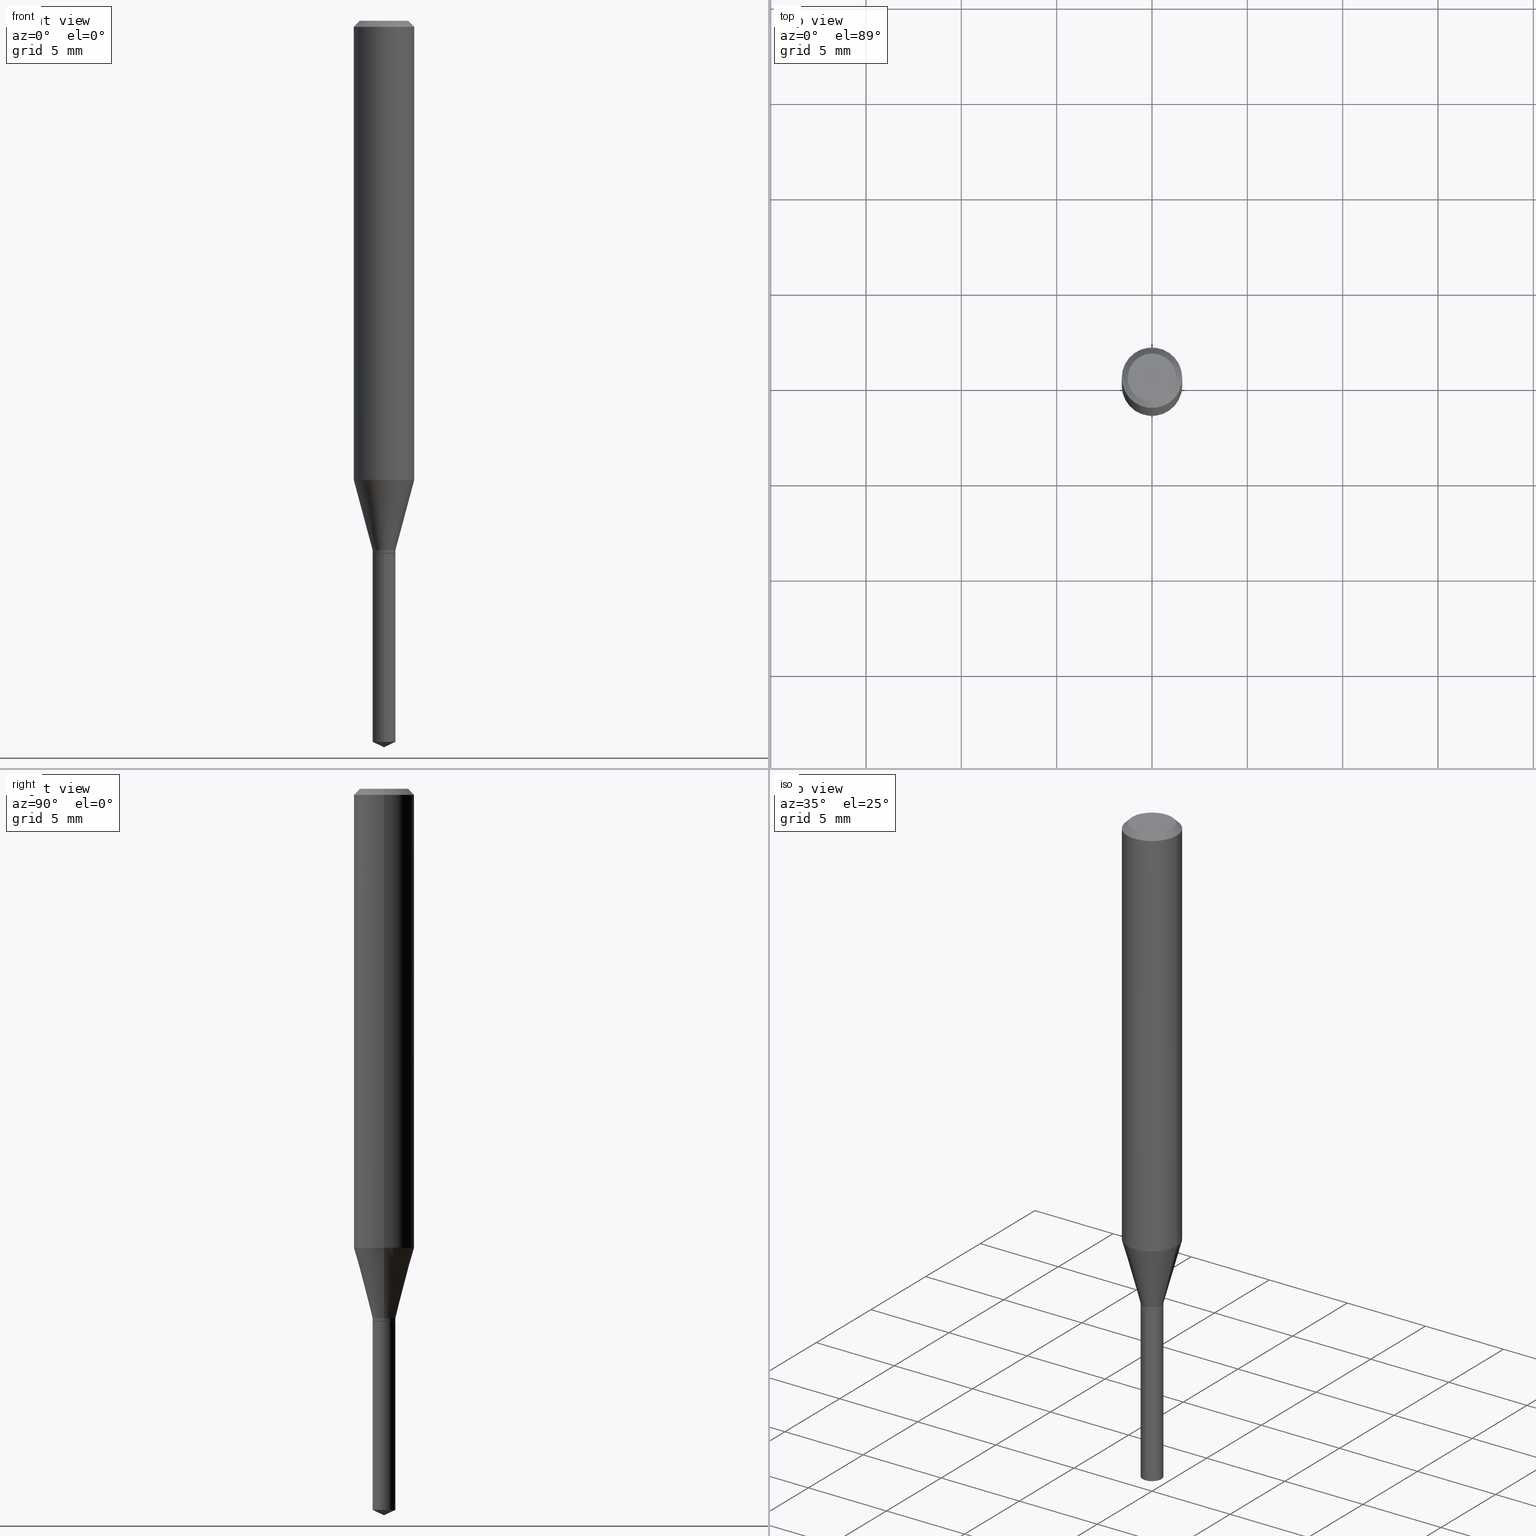
[diagram: canonical four-view strip — front | top / right | iso, engineering-drawing reading convention]
A machine part, canonical four-view strip (front | top / right | iso — engineering-drawing reading convention). The complete STEP part file that produces these views, byte-faithful:
ISO-10303-21;
HEADER;
FILE_DESCRIPTION (( 'STEP AP203' ),
    '1' );
FILE_NAME ('07162.STEP',
    '2024-04-23T19:51:07',
    ( '' ),
    ( '' ),
    'SwSTEP 2.0',
    'SolidWorks 2023',
    '' );
FILE_SCHEMA (( 'CONFIG_CONTROL_DESIGN' ));
ENDSEC;

DATA;
#1 = CARTESIAN_POINT ( 'NONE',  ( 0.06250000000000001388, -4.724246415962604812E-16, -0.01250000000000008916 ) ) ;
#2 = DIRECTION ( 'NONE',  ( 1.000000000000000000, -6.982962677686258033E-15, 0.000000000000000000 ) ) ;
#3 = PERSON_AND_ORGANIZATION_ROLE ( 'creator' ) ;
#4 = DIRECTION ( 'NONE',  ( -2.445399690415121810E-29, 3.491580316559632610E-15, 1.000000000000000000 ) ) ;
#5 = CIRCLE ( 'NONE', #13, 0.02360000000000000292 ) ;
#6 = APPROVAL_PERSON_ORGANIZATION ( #44, #146, #391 ) ;
#7 = APPROVAL_DATE_TIME ( #124, #146 ) ;
#8 = LINE ( 'NONE', #47, #394 ) ;
#9 = DATE_AND_TIME ( #456, #260 ) ;
#10 = CARTESIAN_POINT ( 'NONE',  ( 0.000000000000000000, 0.000000000000000000, 0.000000000000000000 ) ) ;
#11 = CARTESIAN_POINT ( 'NONE',  ( 3.641264279941484398E-29, -5.198837244231382439E-15, -1.488995139267542012 ) ) ;
#12 = ADVANCED_FACE ( 'NONE', ( #43 ), #266, .T. ) ;
#13 = AXIS2_PLACEMENT_3D ( 'NONE', #373, #134, #59 ) ;
#14 = ORGANIZATION ( 'UNSPECIFIED', 'UNSPECIFIED', '' ) ;
#15 = LINE ( 'NONE', #114, #463 ) ;
#16 = ORIENTED_EDGE ( 'NONE', *, *, #227, .T. ) ;
#17 = CARTESIAN_POINT ( 'NONE',  ( 3.641264279941484398E-29, -5.198837244231382439E-15, -1.488995139267542012 ) ) ;
#18 = EDGE_LOOP ( 'NONE', ( #127, #178, #94, #177 ) ) ;
#19 = DIRECTION ( 'NONE',  ( -6.982962677686266711E-15, -1.000000000000000000, 3.520397390770536306E-15 ) ) ;
#20 = AXIS2_PLACEMENT_3D ( 'NONE', #11, #77, #131 ) ;
#21 = CIRCLE ( 'NONE', #50, 0.02360000000000000292 ) ;
#22 = DIRECTION ( 'NONE',  ( -2.445468806185136597E-29, 3.491481338843145583E-15, 1.000000000000000000 ) ) ;
#23 = ORIENTED_EDGE ( 'NONE', *, *, #84, .F. ) ;
#24 = LINE ( 'NONE', #254, #116 ) ;
#25 = CARTESIAN_POINT ( 'NONE',  ( -0.06250000000000012490, -2.864868739687227081E-15, -0.9477232235855707065 ) ) ;
#26 = ADVANCED_FACE ( 'NONE', ( #274 ), #400, .T. ) ;
#27 = ORIENTED_EDGE ( 'NONE', *, *, #356, .F. ) ;
#28 = VECTOR ( 'NONE', #63, 39.37007874015748143 ) ;
#29 = CARTESIAN_POINT ( 'NONE',  ( -1.647979191933689828E-16, -0.02360000000000384360, -1.099999999999999867 ) ) ;
#30 = VECTOR ( 'NONE', #45, 39.37007874015748854 ) ;
#31 = APPLICATION_PROTOCOL_DEFINITION ( 'international standard', 'config_control_design', 1994, #329 ) ;
#32 = ADVANCED_FACE ( 'NONE', ( #320 ), #37, .F. ) ;
#33 = CARTESIAN_POINT ( 'NONE',  ( -0.06250000000000001388, -1.232211523286351422E-15, -0.01250000000000008916 ) ) ;
#34 = AXIS2_PLACEMENT_3D ( 'NONE', #462, #48, #357 ) ;
#35 = EDGE_LOOP ( 'NONE', ( #185, #374, #308, #489 ) ) ;
#36 = APPROVAL_PERSON_ORGANIZATION ( #314, #193, #235 ) ;
#37 = PLANE ( 'NONE',  #284 ) ;
#38 = DATE_TIME_ROLE ( 'classification_date' ) ;
#39 = DIRECTION ( 'NONE',  ( -2.445468806185136597E-29, 3.491481338843145583E-15, 1.000000000000000000 ) ) ;
#40 = CARTESIAN_POINT ( 'NONE',  ( -0.02360000000000000292, -3.648151869582290642E-15, -1.092900000000000205 ) ) ;
#41 = DIRECTION ( 'NONE',  ( -1.000000000000000000, 6.982962677686265922E-15, -4.876176775795935793E-29 ) ) ;
#42 = AXIS2_PLACEMENT_3D ( 'NONE', #181, #96, #140 ) ;
#43 = FACE_OUTER_BOUND ( 'NONE', #377, .T. ) ;
#44 = PERSON_AND_ORGANIZATION ( #335, #14 ) ;
#45 = DIRECTION ( 'NONE',  ( 6.439704144417001954E-15, 0.9063077870366483824, 0.4226182617407028830 ) ) ;
#46 = EDGE_CURVE ( 'NONE', #123, #230, #455, .T. ) ;
#47 = CARTESIAN_POINT ( 'NONE',  ( 1.676880856394105352E-16, 0.02359999999999615877, -1.100000000000000089 ) ) ;
#48 = DIRECTION ( 'NONE',  ( -2.445399690415121530E-29, 3.491580316559632610E-15, 1.000000000000000000 ) ) ;
#49 = ORIENTED_EDGE ( 'NONE', *, *, #298, .T. ) ;
#50 = AXIS2_PLACEMENT_3D ( 'NONE', #398, #207, #167 ) ;
#51 = DIRECTION ( 'NONE',  ( -2.445468806185136597E-29, 3.491481338843145583E-15, 1.000000000000000000 ) ) ;
#52 = ORIENTED_EDGE ( 'NONE', *, *, #393, .T. ) ;
#53 = CC_DESIGN_PERSON_AND_ORGANIZATION_ASSIGNMENT ( #426, #388, ( #164 ) ) ;
#54 = CYLINDRICAL_SURFACE ( 'NONE', #135, 0.06250000000000006939 ) ;
#55 = ORIENTED_EDGE ( 'NONE', *, *, #237, .F. ) ;
#56 = DIRECTION ( 'NONE',  ( 1.000000000000000000, -6.982962677686258033E-15, 0.000000000000000000 ) ) ;
#57 = ORIENTED_EDGE ( 'NONE', *, *, #84, .T. ) ;
#58 = AXIS2_PLACEMENT_3D ( 'NONE', #79, #236, #85 ) ;
#59 = DIRECTION ( 'NONE',  ( 1.000000000000000000, -6.982962677686258033E-15, 0.000000000000000000 ) ) ;
#60 = ORIENTED_EDGE ( 'NONE', *, *, #112, .F. ) ;
#61 = EDGE_CURVE ( 'NONE', #64, #108, #350, .T. ) ;
#62 = CARTESIAN_POINT ( 'NONE',  ( 0.000000000000000000, 0.000000000000000000, 0.000000000000000000 ) ) ;
#63 = DIRECTION ( 'NONE',  ( 0.7071067811865453523, -7.319954787623248157E-15, -0.7071067811865496822 ) ) ;
#64 = VERTEX_POINT ( 'NONE', #147 ) ;
#65 = EDGE_LOOP ( 'NONE', ( #211, #296, #104, #386 ) ) ;
#66 = CARTESIAN_POINT ( 'NONE',  ( 0.000000000000000000, 0.000000000000000000, 0.000000000000000000 ) ) ;
#67 = ADVANCED_FACE ( 'NONE', ( #215 ), #279, .F. ) ;
#68 = ORIENTED_EDGE ( 'NONE', *, *, #61, .F. ) ;
#69 = DIRECTION ( 'NONE',  ( -2.445468806185136597E-29, 3.491481338843145583E-15, 1.000000000000000000 ) ) ;
#70 = DIRECTION ( 'NONE',  ( 1.000000000000000000, -6.982962677686265922E-15, 0.000000000000000000 ) ) ;
#71 = VECTOR ( 'NONE', #118, 39.37007874015748143 ) ;
#72 = APPROVAL_PERSON_ORGANIZATION ( #429, #425, #348 ) ;
#73 = APPLICATION_CONTEXT ( 'configuration controlled 3d designs of mechanical parts and assemblies' ) ;
#74 = CALENDAR_DATE ( 2024, 23, 4 ) ;
#75 = CIRCLE ( 'NONE', #330, 0.04999999999999999584 ) ;
#76 = CYLINDRICAL_SURFACE ( 'NONE', #58, 0.02360000000000000292 ) ;
#77 = DIRECTION ( 'NONE',  ( -2.445399690415121530E-29, 3.491580316559632610E-15, 1.000000000000000000 ) ) ;
#78 = MANIFOLD_SOLID_BREP ( 'Body-Move/Copy2[2]', #487 ) ;
#79 = CARTESIAN_POINT ( 'NONE',  ( 2.690015686803650369E-29, -3.840629472727460101E-15, -1.100000000000000089 ) ) ;
#80 = VECTOR ( 'NONE', #272, 39.37007874015747433 ) ;
#81 = MANIFOLD_SOLID_BREP ( 'Body-Move/Copy2[1]', #428 ) ;
#82 = AXIS2_PLACEMENT_3D ( 'NONE', #179, #324, #184 ) ;
#83 = AXIS2_PLACEMENT_3D ( 'NONE', #375, #412, #419 ) ;
#84 = EDGE_CURVE ( 'NONE', #259, #410, #434, .T. ) ;
#85 = DIRECTION ( 'NONE',  ( -6.982962677686265133E-15, -1.000000000000000000, 5.787813545898861862E-15 ) ) ;
#86 = LINE ( 'NONE', #246, #30 ) ;
#87 = ORIENTED_EDGE ( 'NONE', *, *, #393, .F. ) ;
#88 = CARTESIAN_POINT ( 'NONE',  ( 0.000000000000000000, 0.000000000000000000, 0.000000000000000000 ) ) ;
#89 = ORIENTED_EDGE ( 'NONE', *, *, #420, .F. ) ;
#90 = AXIS2_PLACEMENT_3D ( 'NONE', #66, #105, #261 ) ;
#91 = LOCAL_TIME ( 15, 51, 7.000000000000000000, #173 ) ;
#92 = DIRECTION ( 'NONE',  ( 1.000000000000000000, -6.982962677686258033E-15, 0.000000000000000000 ) ) ;
#93 = DIRECTION ( 'NONE',  ( -2.445399690415121530E-29, 3.491580316559632610E-15, 1.000000000000000000 ) ) ;
#94 = ORIENTED_EDGE ( 'NONE', *, *, #112, .T. ) ;
#95 = CC_DESIGN_PERSON_AND_ORGANIZATION_ASSIGNMENT ( #225, #192, ( #282 ) ) ;
#96 = DIRECTION ( 'NONE',  ( -2.445468806185136597E-29, 3.491481338843145583E-15, 1.000000000000000000 ) ) ;
#97 = VERTEX_POINT ( 'NONE', #457 ) ;
#98 = EDGE_CURVE ( 'NONE', #180, #64, #309, .T. ) ;
#99 = AXIS2_PLACEMENT_3D ( 'NONE', #336, #69, #145 ) ;
#100 = DIRECTION ( 'NONE',  ( -2.445399690415121530E-29, 3.491580316559632610E-15, 1.000000000000000000 ) ) ;
#101 = EDGE_LOOP ( 'NONE', ( #89, #338, #49, #139 ) ) ;
#102 = CARTESIAN_POINT ( 'NONE',  ( 2.672652858279736287E-29, -3.815839955221674751E-15, -1.092900000000000205 ) ) ;
#103 = ADVANCED_FACE ( 'NONE', ( #423 ), #449, .T. ) ;
#104 = ORIENTED_EDGE ( 'NONE', *, *, #262, .F. ) ;
#105 = DIRECTION ( 'NONE',  ( 0.000000000000000000, 0.000000000000000000, 1.000000000000000000 ) ) ;
#106 = AXIS2_PLACEMENT_3D ( 'NONE', #409, #365, #327 ) ;
#107 = CC_DESIGN_APPROVAL ( #193, ( #443 ) ) ;
#108 = VERTEX_POINT ( 'NONE', #244 ) ;
#109 = DIRECTION ( 'NONE',  ( 1.000000000000000000, -6.982962677686265922E-15, 4.876176775795935793E-29 ) ) ;
#110 = ORIENTED_EDGE ( 'NONE', *, *, #98, .T. ) ;
#111 = MECHANICAL_CONTEXT ( 'NONE', #329, 'mechanical' ) ;
#112 = EDGE_CURVE ( 'NONE', #159, #339, #460, .T. ) ;
#113 = CIRCLE ( 'NONE', #310, 0.02360000000000000292 ) ;
#114 = CARTESIAN_POINT ( 'NONE',  ( -0.02360000000000000292, 1.676880856393836646E-16, -1.160868681300157803E-30 ) ) ;
#115 = CIRCLE ( 'NONE', #99, 0.02360000000000000292 ) ;
#116 = VECTOR ( 'NONE', #219, 39.37007874015748854 ) ;
#117 = PERSON_AND_ORGANIZATION_ROLE ( 'design_supplier' ) ;
#118 = DIRECTION ( 'NONE',  ( -2.445468806185136877E-29, 3.491481338843145188E-15, 1.000000000000000000 ) ) ;
#119 = SHAPE_DEFINITION_REPRESENTATION ( #293, #480 ) ;
#120 = CARTESIAN_POINT ( 'NONE',  ( 2.672652858279736287E-29, -3.815839955221674751E-15, -1.092900000000000205 ) ) ;
#121 = EDGE_CURVE ( 'NONE', #413, #339, #126, .T. ) ;
#122 = ORIENTED_EDGE ( 'NONE', *, *, #471, .F. ) ;
#123 = VERTEX_POINT ( 'NONE', #432 ) ;
#124 = DATE_AND_TIME ( #355, #303 ) ;
#125 = CARTESIAN_POINT ( 'NONE',  ( 1.946643104841063088E-47, -2.779290439833033990E-33, -7.960204194457798443E-19 ) ) ;
#126 = CIRCLE ( 'NONE', #385, 0.06250000000000012490 ) ;
#127 = ORIENTED_EDGE ( 'NONE', *, *, #245, .F. ) ;
#128 = AXIS2_PLACEMENT_3D ( 'NONE', #217, #93, #251 ) ;
#129 = ORIENTED_EDGE ( 'NONE', *, *, #369, .T. ) ;
#130 = DATE_TIME_ROLE ( 'creation_date' ) ;
#131 = DIRECTION ( 'NONE',  ( -6.982962677686265133E-15, -1.000000000000000000, 0.000000000000000000 ) ) ;
#132 = DIRECTION ( 'NONE',  ( -2.445399690415121530E-29, 3.491580316559632610E-15, 1.000000000000000000 ) ) ;
#133 = ORIENTED_EDGE ( 'NONE', *, *, #424, .T. ) ;
#134 = DIRECTION ( 'NONE',  ( -2.445468806185136597E-29, 3.491481338843145583E-15, 1.000000000000000000 ) ) ;
#135 = AXIS2_PLACEMENT_3D ( 'NONE', #62, #22, #371 ) ;
#136 = VECTOR ( 'NONE', #448, 39.37007874015748143 ) ;
#137 = CARTESIAN_POINT ( 'NONE',  ( 0.02360000000000000292, -4.003681651251434057E-15, -1.099499999999999922 ) ) ;
#138 = AXIS2_PLACEMENT_3D ( 'NONE', #435, #100, #19 ) ;
#139 = ORIENTED_EDGE ( 'NONE', *, *, #465, .F. ) ;
#140 = DIRECTION ( 'NONE',  ( 1.000000000000000000, -6.982962677686264344E-15, 0.000000000000000000 ) ) ;
#141 = EDGE_CURVE ( 'NONE', #250, #372, #15, .T. ) ;
#142 = ORIENTED_EDGE ( 'NONE', *, *, #465, .T. ) ;
#143 = LINE ( 'NONE', #441, #234 ) ;
#144 = DIRECTION ( 'NONE',  ( -2.438088387897960049E-29, 3.491481338843145188E-15, 1.000000000000000000 ) ) ;
#145 = DIRECTION ( 'NONE',  ( 1.000000000000000000, -6.982962677686258033E-15, 0.000000000000000000 ) ) ;
#146 = APPROVAL ( #162, 'UNSPECIFIED' ) ;
#147 = CARTESIAN_POINT ( 'NONE',  ( 0.04999999999999999584, -4.077247707424184705E-16, -1.592040838888913461E-18 ) ) ;
#148 = CARTESIAN_POINT ( 'NONE',  ( 2.690015686803650369E-29, -3.840629472727460101E-15, -1.100000000000000089 ) ) ;
#149 = CARTESIAN_POINT ( 'NONE',  ( -0.06250000000000001388, 3.927916506198521080E-16, -0.01250000000000008916 ) ) ;
#150 = EDGE_LOOP ( 'NONE', ( #133, #263, #390, #60 ) ) ;
#151 = UNCERTAINTY_MEASURE_WITH_UNIT (LENGTH_MEASURE( 1.000000000000000082E-05 ), #383, 'distance_accuracy_value', 'NONE');
#152 = CARTESIAN_POINT ( 'NONE',  ( 2.690015686803650369E-29, -3.840629472727460101E-15, -1.100000000000000089 ) ) ;
#153 = CONICAL_SURFACE ( 'NONE', #194, 0.02360000000000000292, 0.2617993877991500740 ) ;
#154 = CC_DESIGN_APPROVAL ( #146, ( #164 ) ) ;
#155 = ORIENTED_EDGE ( 'NONE', *, *, #166, .F. ) ;
#156 = DIRECTION ( 'NONE',  ( 1.000000000000000000, -6.982962677686258033E-15, 0.000000000000000000 ) ) ;
#157 = DIRECTION ( 'NONE',  ( -6.328713451373347290E-15, -0.9063077870366454958, 0.4226182617407092112 ) ) ;
#158 = ADVANCED_FACE ( 'NONE', ( #422 ), #76, .T. ) ;
#159 = VERTEX_POINT ( 'NONE', #280 ) ;
#160 = APPROVAL_DATE_TIME ( #490, #425 ) ;
#161 = CARTESIAN_POINT ( 'NONE',  ( 3.056836007731442729E-31, -4.364351673553962300E-17, -0.01250000000000008916 ) ) ;
#162 = APPROVAL_STATUS ( 'not_yet_approved' ) ;
#163 = FACE_OUTER_BOUND ( 'NONE', #35, .T. ) ;
#164 = PRODUCT_DEFINITION_FORMATION_WITH_SPECIFIED_SOURCE ( 'ANY', '', #282, .NOT_KNOWN. ) ;
#165 = PERSON_AND_ORGANIZATION ( #335, #14 ) ;
#166 = EDGE_CURVE ( 'NONE', #488, #97, #209, .T. ) ;
#167 = DIRECTION ( 'NONE',  ( 1.000000000000000000, -6.982962677686258033E-15, 0.000000000000000000 ) ) ;
#168 = EDGE_CURVE ( 'NONE', #339, #108, #315, .T. ) ;
#169 = CARTESIAN_POINT ( 'NONE',  ( 2.690015686803650369E-29, -3.840629472727460101E-15, -1.100000000000000089 ) ) ;
#170 = PERSON_AND_ORGANIZATION ( #335, #14 ) ;
#171 = CARTESIAN_POINT ( 'NONE',  ( 1.676880856394200508E-16, 0.02359999999999479875, -1.488995139267542012 ) ) ;
#172 = DIRECTION ( 'NONE',  ( 2.445468806185136597E-29, -3.491481338843145583E-15, -1.000000000000000000 ) ) ;
#173 = COORDINATED_UNIVERSAL_TIME_OFFSET ( 5, 0, .BEHIND. ) ;
#174 = DIRECTION ( 'NONE',  ( 1.000000000000000000, -6.982962677686264344E-15, 0.000000000000000000 ) ) ;
#175 = CC_DESIGN_APPROVAL ( #425, ( #476 ) ) ;
#176 = CYLINDRICAL_SURFACE ( 'NONE', #286, 0.02360000000000000292 ) ;
#177 = ORIENTED_EDGE ( 'NONE', *, *, #121, .F. ) ;
#178 = ORIENTED_EDGE ( 'NONE', *, *, #213, .T. ) ;
#179 = CARTESIAN_POINT ( 'NONE',  ( -9.260740279983036507E-28, 1.322265303911854087E-13, 37.87007874015748143 ) ) ;
#180 = VERTEX_POINT ( 'NONE', #354 ) ;
#181 = CARTESIAN_POINT ( 'NONE',  ( 2.317627580175734983E-29, -3.308957949537290487E-15, -0.9477232235855707065 ) ) ;
#182 = EDGE_CURVE ( 'NONE', #259, #97, #8, .T. ) ;
#183 = CONICAL_SURFACE ( 'NONE', #82, 84.42940631927235984, 1.134464013796306903 ) ;
#184 = DIRECTION ( 'NONE',  ( -6.982962677686266711E-15, -1.000000000000000000, 3.520397390770536306E-15 ) ) ;
#185 = ORIENTED_EDGE ( 'NONE', *, *, #275, .T. ) ;
#186 = DIRECTION ( 'NONE',  ( 1.000000000000000000, -6.982962677686258033E-15, 0.000000000000000000 ) ) ;
#187 = CARTESIAN_POINT ( 'NONE',  ( -1.647979191933594425E-16, -0.02360000000000519668, -1.488995139267542012 ) ) ;
#188 = VECTOR ( 'NONE', #397, 39.37007874015748143 ) ;
#189 = ORIENTED_EDGE ( 'NONE', *, *, #285, .F. ) ;
#190 = DIRECTION ( 'NONE',  ( 1.000000000000000000, -6.982962677686258033E-15, 0.000000000000000000 ) ) ;
#191 = ORIENTED_EDGE ( 'NONE', *, *, #141, .T. ) ;
#192 = PERSON_AND_ORGANIZATION_ROLE ( 'design_owner' ) ;
#193 = APPROVAL ( #459, 'UNSPECIFIED' ) ;
#194 = AXIS2_PLACEMENT_3D ( 'NONE', #102, #220, #190 ) ;
#195 = EDGE_CURVE ( 'NONE', #413, #417, #323, .T. ) ;
#196 = ORIENTED_EDGE ( 'NONE', *, *, #445, .F. ) ;
#197 = APPROVAL_STATUS ( 'not_yet_approved' ) ;
#198 = DIRECTION ( 'NONE',  ( -0.2588190451025213501, 5.211531920934551042E-15, 0.9659258262890682012 ) ) ;
#199 = CALENDAR_DATE ( 2024, 23, 4 ) ;
#200 = DIRECTION ( 'NONE',  ( 2.438088387897960049E-29, -3.491481338843145188E-15, -1.000000000000000000 ) ) ;
#201 = LOCAL_TIME ( 15, 51, 7.000000000000000000, #242 ) ;
#202 = SECURITY_CLASSIFICATION_LEVEL ( 'unclassified' ) ;
#203 = AXIS2_PLACEMENT_3D ( 'NONE', #289, #439, #186 ) ;
#204 = CARTESIAN_POINT ( 'NONE',  ( 0.02309999999999999901, -4.001935910582012553E-15, -1.100000000000000089 ) ) ;
#205 = PERSON_AND_ORGANIZATION ( #335, #14 ) ;
#206 = DIRECTION ( 'NONE',  ( -2.445468806185136877E-29, 3.491481338843145188E-15, 1.000000000000000000 ) ) ;
#207 = DIRECTION ( 'NONE',  ( -2.445468806185136597E-29, 3.491481338843145583E-15, 1.000000000000000000 ) ) ;
#208 = AXIS2_PLACEMENT_3D ( 'NONE', #468, #39, #156 ) ;
#209 = CIRCLE ( 'NONE', #249, 0.02360000000000000292 ) ;
#210 = FACE_OUTER_BOUND ( 'NONE', #247, .T. ) ;
#211 = ORIENTED_EDGE ( 'NONE', *, *, #356, .T. ) ;
#212 = CARTESIAN_POINT ( 'NONE',  ( 0.06250000000000012490, -3.745393116892682550E-15, -0.9477232235855707065 ) ) ;
#213 = EDGE_CURVE ( 'NONE', #372, #159, #21, .T. ) ;
#214 = CARTESIAN_POINT ( 'NONE',  ( 3.668099535622682715E-29, -5.237370474839449507E-15, -1.500000000000000222 ) ) ;
#215 = FACE_OUTER_BOUND ( 'NONE', #256, .T. ) ;
#216 = ORIENTED_EDGE ( 'NONE', *, *, #424, .F. ) ;
#217 = CARTESIAN_POINT ( 'NONE',  ( 2.690015686803650369E-29, -3.840629472727460101E-15, -1.100000000000000089 ) ) ;
#218 = ORIENTED_EDGE ( 'NONE', *, *, #182, .F. ) ;
#219 = DIRECTION ( 'NONE',  ( 0.7071067811865232589, -2.468850131082003836E-15, 0.7071067811865715536 ) ) ;
#220 = DIRECTION ( 'NONE',  ( -2.445468806185136597E-29, 3.491481338843145583E-15, 1.000000000000000000 ) ) ;
#221 = AXIS2_PLACEMENT_3D ( 'NONE', #317, #454, #360 ) ;
#222 = ORIENTED_EDGE ( 'NONE', *, *, #46, .T. ) ;
#223 = AXIS2_PLACEMENT_3D ( 'NONE', #120, #267, #307 ) ;
#224 = DIRECTION ( 'NONE',  ( 2.445399690415121250E-29, -3.491580316559632610E-15, -1.000000000000000000 ) ) ;
#225 = PERSON_AND_ORGANIZATION ( #335, #14 ) ;
#226 = ORIENTED_EDGE ( 'NONE', *, *, #182, .T. ) ;
#227 = EDGE_CURVE ( 'NONE', #382, #259, #86, .T. ) ;
#228 = ORIENTED_EDGE ( 'NONE', *, *, #121, .T. ) ;
#229 =( LENGTH_UNIT ( ) NAMED_UNIT ( * ) SI_UNIT ( $, .METRE. ) );
#230 = VERTEX_POINT ( 'NONE', #204 ) ;
#231 = CIRCLE ( 'NONE', #34, 0.02360000000000000292 ) ;
#232 = DIRECTION ( 'NONE',  ( 1.000000000000000000, -6.982962677686265922E-15, 4.875957971899673662E-29 ) ) ;
#233 = AXIS2_PLACEMENT_3D ( 'NONE', #281, #367, #92 ) ;
#234 = VECTOR ( 'NONE', #477, 39.37007874015748143 ) ;
#235 = APPROVAL_ROLE ( '' ) ;
#236 = DIRECTION ( 'NONE',  ( -2.445399690415121530E-29, 3.491580316559632610E-15, 1.000000000000000000 ) ) ;
#237 = EDGE_CURVE ( 'NONE', #97, #488, #231, .T. ) ;
#238 = CYLINDRICAL_SURFACE ( 'NONE', #470, 0.06250000000000006939 ) ;
#239 = AXIS2_PLACEMENT_3D ( 'NONE', #125, #200, #41 ) ;
#240 = DIRECTION ( 'NONE',  ( -2.445399690415121530E-29, 3.491580316559632610E-15, 1.000000000000000000 ) ) ;
#241 = DIRECTION ( 'NONE',  ( -1.000000000000000000, 6.982962677686265922E-15, 0.000000000000000000 ) ) ;
#242 = COORDINATED_UNIVERSAL_TIME_OFFSET ( 5, 0, .BEHIND. ) ;
#243 = CC_DESIGN_PERSON_AND_ORGANIZATION_ASSIGNMENT ( #170, #117, ( #164 ) ) ;
#244 = CARTESIAN_POINT ( 'NONE',  ( 0.06250000000000001388, -4.800786840909313294E-16, -0.01250000000000008916 ) ) ;
#245 = EDGE_CURVE ( 'NONE', #372, #413, #389, .T. ) ;
#246 = CARTESIAN_POINT ( 'NONE',  ( 3.668252923656895710E-29, -5.237152723863177100E-15, -1.500000000000000222 ) ) ;
#247 = EDGE_LOOP ( 'NONE', ( #253, #228, #438, #196 ) ) ;
#248 = FACE_OUTER_BOUND ( 'NONE', #404, .T. ) ;
#249 = AXIS2_PLACEMENT_3D ( 'NONE', #395, #240, #358 ) ;
#250 = VERTEX_POINT ( 'NONE', #313 ) ;
#251 = DIRECTION ( 'NONE',  ( -6.982962677686265133E-15, -1.000000000000000000, 5.787813545898861862E-15 ) ) ;
#252 = ADVANCED_FACE ( 'NONE', ( #163 ), #238, .T. ) ;
#253 = ORIENTED_EDGE ( 'NONE', *, *, #195, .F. ) ;
#254 = CARTESIAN_POINT ( 'NONE',  ( 0.02309999999999999901, -4.001935910582012553E-15, -1.100000000000000089 ) ) ;
#255 = CARTESIAN_POINT ( 'NONE',  ( -0.02309999999999999901, -3.676494100766876892E-15, -1.100000000000000089 ) ) ;
#256 = EDGE_LOOP ( 'NONE', ( #110, #349 ) ) ;
#257 = CARTESIAN_POINT ( 'NONE',  ( 2.688792952400557567E-29, -3.838883732058038598E-15, -1.099499999999999922 ) ) ;
#258 = CYLINDRICAL_SURFACE ( 'NONE', #83, 0.02360000000000000292 ) ;
#259 = VERTEX_POINT ( 'NONE', #171 ) ;
#260 = LOCAL_TIME ( 15, 51, 7.000000000000000000, #306 ) ;
#261 = DIRECTION ( 'NONE',  ( 1.000000000000000000, 0.000000000000000000, 0.000000000000000000 ) ) ;
#262 = EDGE_CURVE ( 'NONE', #319, #250, #5, .T. ) ;
#263 = ORIENTED_EDGE ( 'NONE', *, *, #245, .T. ) ;
#264 = FACE_OUTER_BOUND ( 'NONE', #150, .T. ) ;
#265 = LINE ( 'NONE', #381, #430 ) ;
#266 = CONICAL_SURFACE ( 'NONE', #337, 0.02309999999999999901, 0.7853981633974141952 ) ;
#267 = DIRECTION ( 'NONE',  ( -2.445468806185136597E-29, 3.491481338843145583E-15, 1.000000000000000000 ) ) ;
#268 = CC_DESIGN_DATE_AND_TIME_ASSIGNMENT ( #270, #130, ( #476 ) ) ;
#269 = CONICAL_SURFACE ( 'NONE', #138, 84.42940631927235984, 1.134464013796306903 ) ;
#270 = DATE_AND_TIME ( #316, #91 ) ;
#271 = DIRECTION ( 'NONE',  ( -2.445468806185136597E-29, 3.491481338843145583E-15, 1.000000000000000000 ) ) ;
#272 = DIRECTION ( 'NONE',  ( 0.2588190451025213501, 1.565188264969621968E-15, 0.9659258262890682012 ) ) ;
#273 = EDGE_LOOP ( 'NONE', ( #287, #305 ) ) ;
#274 = FACE_OUTER_BOUND ( 'NONE', #101, .T. ) ;
#275 = EDGE_CURVE ( 'NONE', #339, #413, #359, .T. ) ;
#276 = CONICAL_SURFACE ( 'NONE', #344, 0.06250000000000001388, 0.7853981633974452814 ) ;
#277 = CARTESIAN_POINT ( 'NONE',  ( 0.02360000000000000292, -3.980637874415070210E-15, -1.092900000000000205 ) ) ;
#278 = EDGE_CURVE ( 'NONE', #123, #250, #473, .T. ) ;
#279 = PLANE ( 'NONE',  #239 ) ;
#280 = CARTESIAN_POINT ( 'NONE',  ( 0.02360000000000000292, -3.980637874415070210E-15, -1.092900000000000205 ) ) ;
#281 = CARTESIAN_POINT ( 'NONE',  ( 2.690015686803650369E-29, -3.840629472727460101E-15, -1.100000000000000089 ) ) ;
#282 = PRODUCT ( '07162', '07162', '', ( #111 ) ) ;
#283 = FACE_OUTER_BOUND ( 'NONE', #483, .T. ) ;
#284 = AXIS2_PLACEMENT_3D ( 'NONE', #148, #224, #418 ) ;
#285 = EDGE_CURVE ( 'NONE', #410, #259, #113, .T. ) ;
#286 = AXIS2_PLACEMENT_3D ( 'NONE', #88, #466, #469 ) ;
#287 = ORIENTED_EDGE ( 'NONE', *, *, #166, .T. ) ;
#288 = CARTESIAN_POINT ( 'NONE',  ( 3.056836007731442729E-31, -4.364351673553962300E-17, -0.01250000000000008916 ) ) ;
#289 = CARTESIAN_POINT ( 'NONE',  ( 2.690015686803650369E-29, -3.840629472727460101E-15, -1.100000000000000089 ) ) ;
#290 = EDGE_LOOP ( 'NONE', ( #218, #57, #52, #55 ) ) ;
#291 = EDGE_CURVE ( 'NONE', #250, #319, #376, .T. ) ;
#292 = DIRECTION ( 'NONE',  ( -2.445399690415121810E-29, 3.491580316559632610E-15, 1.000000000000000000 ) ) ;
#293 = PRODUCT_DEFINITION_SHAPE ( 'NONE', 'NONE',  #476 ) ;
#294 = ADVANCED_FACE ( 'NONE', ( #210 ), #54, .T. ) ;
#295 = PLANE ( 'NONE',  #478 ) ;
#296 = ORIENTED_EDGE ( 'NONE', *, *, #278, .T. ) ;
#297 = ORIENTED_EDGE ( 'NONE', *, *, #471, .T. ) ;
#298 = EDGE_CURVE ( 'NONE', #108, #417, #414, .T. ) ;
#299 = CC_DESIGN_DATE_AND_TIME_ASSIGNMENT ( #353, #38, ( #443 ) ) ;
#300 = VECTOR ( 'NONE', #403, 39.37007874015748854 ) ;
#301 = CIRCLE ( 'NONE', #415, 0.06250000000000001388 ) ;
#302 = CIRCLE ( 'NONE', #233, 0.02309999999999999901 ) ;
#303 = LOCAL_TIME ( 15, 51, 7.000000000000000000, #461 ) ;
#304 = FACE_OUTER_BOUND ( 'NONE', #467, .T. ) ;
#305 = ORIENTED_EDGE ( 'NONE', *, *, #237, .T. ) ;
#306 = COORDINATED_UNIVERSAL_TIME_OFFSET ( 5, 0, .BEHIND. ) ;
#307 = DIRECTION ( 'NONE',  ( 1.000000000000000000, -6.982962677686258033E-15, 0.000000000000000000 ) ) ;
#308 = ORIENTED_EDGE ( 'NONE', *, *, #298, .F. ) ;
#309 = CIRCLE ( 'NONE', #221, 0.04999999999999999584 ) ;
#310 = AXIS2_PLACEMENT_3D ( 'NONE', #17, #132, #401 ) ;
#311 = PERSON_AND_ORGANIZATION_ROLE ( 'classification_officer' ) ;
#312 =( GEOMETRIC_REPRESENTATION_CONTEXT ( 3 ) GLOBAL_UNCERTAINTY_ASSIGNED_CONTEXT ( ( #151 ) ) GLOBAL_UNIT_ASSIGNED_CONTEXT ( ( #383, #346, #379 ) ) REPRESENTATION_CONTEXT ( 'NONE', 'WORKASPACE' ) );
#313 = CARTESIAN_POINT ( 'NONE',  ( -0.02360000000000000292, -3.659673758000472566E-15, -1.099499999999999922 ) ) ;
#314 = PERSON_AND_ORGANIZATION ( #335, #14 ) ;
#315 = LINE ( 'NONE', #352, #188 ) ;
#316 = CALENDAR_DATE ( 2024, 23, 4 ) ;
#317 = CARTESIAN_POINT ( 'NONE',  ( 3.893286209682126177E-47, -5.558580879666067980E-33, -1.592040838891559689E-18 ) ) ;
#318 = ADVANCED_FACE ( 'NONE', ( #248 ), #183, .T. ) ;
#319 = VERTEX_POINT ( 'NONE', #137 ) ;
#320 = FACE_OUTER_BOUND ( 'NONE', #273, .T. ) ;
#321 = APPROVAL_DATE_TIME ( #9, #193 ) ;
#322 = AXIS2_PLACEMENT_3D ( 'NONE', #257, #51, #56 ) ;
#323 = LINE ( 'NONE', #464, #71 ) ;
#324 = DIRECTION ( 'NONE',  ( -2.445399690415121530E-29, 3.491580316559632610E-15, 1.000000000000000000 ) ) ;
#325 = ADVANCED_FACE ( 'NONE', ( #433 ), #276, .T. ) ;
#326 = DIRECTION ( 'NONE',  ( 2.445468806185136597E-29, -3.491481338843145583E-15, -1.000000000000000000 ) ) ;
#327 = DIRECTION ( 'NONE',  ( 1.000000000000000000, -6.982962677686265922E-15, 0.000000000000000000 ) ) ;
#328 = AXIS2_PLACEMENT_3D ( 'NONE', #161, #172, #241 ) ;
#329 = APPLICATION_CONTEXT ( 'configuration controlled 3d designs of mechanical parts and assemblies' ) ;
#330 = AXIS2_PLACEMENT_3D ( 'NONE', #484, #421, #232 ) ;
#331 = CARTESIAN_POINT ( 'NONE',  ( -0.02360000000000000292, -3.659673758000472566E-15, -1.092900000000000205 ) ) ;
#332 = CC_DESIGN_PERSON_AND_ORGANIZATION_ASSIGNMENT ( #205, #3, ( #476 ) ) ;
#333 = LINE ( 'NONE', #474, #363 ) ;
#334 = ADVANCED_FACE ( 'NONE', ( #436 ), #176, .T. ) ;
#335 = PERSON ( 'UNSPECIFIED', 'UNSPECIFIED', 'UNSPECIFIED', ('UNSPECIFIED'), ('UNSPECIFIED'), ('UNSPECIFIED') ) ;
#336 = CARTESIAN_POINT ( 'NONE',  ( 2.672652858279736287E-29, -3.815839955221674751E-15, -1.092900000000000205 ) ) ;
#337 = AXIS2_PLACEMENT_3D ( 'NONE', #169, #351, #2 ) ;
#338 = ORIENTED_EDGE ( 'NONE', *, *, #61, .T. ) ;
#339 = VERTEX_POINT ( 'NONE', #212 ) ;
#340 = ADVANCED_FACE ( 'NONE', ( #411 ), #472, .T. ) ;
#341 = FACE_OUTER_BOUND ( 'NONE', #362, .T. ) ;
#342 = ORIENTED_EDGE ( 'NONE', *, *, #408, .F. ) ;
#343 = APPLICATION_PROTOCOL_DEFINITION ( 'international standard', 'config_control_design', 1994, #73 ) ;
#344 = AXIS2_PLACEMENT_3D ( 'NONE', #288, #326, #405 ) ;
#345 = LOCAL_TIME ( 15, 51, 7.000000000000000000, #396 ) ;
#346 =( NAMED_UNIT ( * ) PLANE_ANGLE_UNIT ( ) SI_UNIT ( $, .RADIAN. ) );
#347 = EDGE_LOOP ( 'NONE', ( #452, #191, #216, #342 ) ) ;
#348 = APPROVAL_ROLE ( '' ) ;
#349 = ORIENTED_EDGE ( 'NONE', *, *, #420, .T. ) ;
#350 = LINE ( 'NONE', #1, #28 ) ;
#351 = DIRECTION ( 'NONE',  ( -2.445468806185136597E-29, 3.491481338843145583E-15, 1.000000000000000000 ) ) ;
#352 = CARTESIAN_POINT ( 'NONE',  ( 0.06250000000000006939, -4.364351673553921624E-16, 3.047610484872463374E-30 ) ) ;
#353 = DATE_AND_TIME ( #74, #201 ) ;
#354 = CARTESIAN_POINT ( 'NONE',  ( -0.04999999999999999584, 3.709698922520826725E-16, -1.592040838894077649E-18 ) ) ;
#355 = CALENDAR_DATE ( 2024, 23, 4 ) ;
#356 = EDGE_CURVE ( 'NONE', #230, #123, #302, .T. ) ;
#357 = DIRECTION ( 'NONE',  ( -6.982962677686265133E-15, -1.000000000000000000, 5.787813545898861862E-15 ) ) ;
#358 = DIRECTION ( 'NONE',  ( -6.982962677686265133E-15, -1.000000000000000000, 5.787813545898861862E-15 ) ) ;
#359 = CIRCLE ( 'NONE', #42, 0.06250000000000012490 ) ;
#360 = DIRECTION ( 'NONE',  ( 1.000000000000000000, -6.982962677686265922E-15, 4.875957971899673662E-29 ) ) ;
#361 = ORIENTED_EDGE ( 'NONE', *, *, #291, .F. ) ;
#362 = EDGE_LOOP ( 'NONE', ( #407, #364, #481, #440 ) ) ;
#363 = VECTOR ( 'NONE', #292, 39.37007874015748143 ) ;
#364 = ORIENTED_EDGE ( 'NONE', *, *, #291, .T. ) ;
#365 = DIRECTION ( 'NONE',  ( -2.445468806185136597E-29, 3.491481338843145583E-15, 1.000000000000000000 ) ) ;
#366 = ORIENTED_EDGE ( 'NONE', *, *, #278, .F. ) ;
#367 = DIRECTION ( 'NONE',  ( -2.445468806185136597E-29, 3.491481338843145583E-15, 1.000000000000000000 ) ) ;
#368 = FACE_OUTER_BOUND ( 'NONE', #65, .T. ) ;
#369 = EDGE_CURVE ( 'NONE', #230, #319, #24, .T. ) ;
#370 = ADVANCED_FACE ( 'NONE', ( #283 ), #269, .T. ) ;
#371 = DIRECTION ( 'NONE',  ( 1.000000000000000000, -6.982962677686266711E-15, 4.876176775795935793E-29 ) ) ;
#372 = VERTEX_POINT ( 'NONE', #331 ) ;
#373 = CARTESIAN_POINT ( 'NONE',  ( 2.688792952400557567E-29, -3.838883732058038598E-15, -1.099499999999999922 ) ) ;
#374 = ORIENTED_EDGE ( 'NONE', *, *, #195, .T. ) ;
#375 = CARTESIAN_POINT ( 'NONE',  ( 0.000000000000000000, 0.000000000000000000, 0.000000000000000000 ) ) ;
#376 = CIRCLE ( 'NONE', #322, 0.02360000000000000292 ) ;
#377 = EDGE_LOOP ( 'NONE', ( #366, #222, #129, #361 ) ) ;
#378 = CC_DESIGN_PERSON_AND_ORGANIZATION_ASSIGNMENT ( #165, #311, ( #443 ) ) ;
#379 =( NAMED_UNIT ( * ) SI_UNIT ( $, .STERADIAN. ) SOLID_ANGLE_UNIT ( ) );
#380 = CONICAL_SURFACE ( 'NONE', #203, 0.02309999999999999901, 0.7853981633974141952 ) ;
#381 = CARTESIAN_POINT ( 'NONE',  ( 3.668099535622682155E-29, -5.237370474839448718E-15, -1.500000000000000222 ) ) ;
#382 = VERTEX_POINT ( 'NONE', #214 ) ;
#383 =( CONVERSION_BASED_UNIT ( 'INCH', #482 ) LENGTH_UNIT ( ) NAMED_UNIT ( #485 ) );
#384 = ADVANCED_FACE ( 'NONE', ( #368 ), #380, .T. ) ;
#385 = AXIS2_PLACEMENT_3D ( 'NONE', #427, #431, #174 ) ;
#386 = ORIENTED_EDGE ( 'NONE', *, *, #369, .F. ) ;
#387 = CC_DESIGN_SECURITY_CLASSIFICATION ( #443, ( #164 ) ) ;
#388 = PERSON_AND_ORGANIZATION_ROLE ( 'creator' ) ;
#389 = LINE ( 'NONE', #40, #442 ) ;
#390 = ORIENTED_EDGE ( 'NONE', *, *, #275, .F. ) ;
#391 = APPROVAL_ROLE ( '' ) ;
#392 = DIRECTION ( 'NONE',  ( 1.000000000000000000, -6.982962677686266711E-15, 4.876176775795935793E-29 ) ) ;
#393 = EDGE_CURVE ( 'NONE', #410, #488, #333, .T. ) ;
#394 = VECTOR ( 'NONE', #4, 39.37007874015748143 ) ;
#395 = CARTESIAN_POINT ( 'NONE',  ( 2.690015686803650369E-29, -3.840629472727460101E-15, -1.100000000000000089 ) ) ;
#396 = COORDINATED_UNIVERSAL_TIME_OFFSET ( 5, 0, .BEHIND. ) ;
#397 = DIRECTION ( 'NONE',  ( -2.445468806185136877E-29, 3.491481338843145188E-15, 1.000000000000000000 ) ) ;
#398 = CARTESIAN_POINT ( 'NONE',  ( 2.672652858279736287E-29, -3.815839955221674751E-15, -1.092900000000000205 ) ) ;
#399 = ORIENTED_EDGE ( 'NONE', *, *, #227, .F. ) ;
#400 = CONICAL_SURFACE ( 'NONE', #328, 0.06250000000000001388, 0.7853981633974452814 ) ;
#401 = DIRECTION ( 'NONE',  ( -6.982962677686265133E-15, -1.000000000000000000, 0.000000000000000000 ) ) ;
#402 = ORIENTED_EDGE ( 'NONE', *, *, #285, .T. ) ;
#403 = DIRECTION ( 'NONE',  ( -0.7071067811865232589, 7.493145998870265808E-15, 0.7071067811865715536 ) ) ;
#404 = EDGE_LOOP ( 'NONE', ( #399, #297, #23 ) ) ;
#405 = DIRECTION ( 'NONE',  ( -1.000000000000000000, 6.982962677686265922E-15, 0.000000000000000000 ) ) ;
#406 = EDGE_LOOP ( 'NONE', ( #402, #226, #155, #87 ) ) ;
#407 = ORIENTED_EDGE ( 'NONE', *, *, #141, .F. ) ;
#408 = EDGE_CURVE ( 'NONE', #319, #159, #143, .T. ) ;
#409 = CARTESIAN_POINT ( 'NONE',  ( 3.056836007731442729E-31, -4.364351673553962300E-17, -0.01250000000000008916 ) ) ;
#410 = VERTEX_POINT ( 'NONE', #187 ) ;
#411 = FACE_OUTER_BOUND ( 'NONE', #406, .T. ) ;
#412 = DIRECTION ( 'NONE',  ( -2.445468806185136597E-29, 3.491481338843145583E-15, 1.000000000000000000 ) ) ;
#413 = VERTEX_POINT ( 'NONE', #25 ) ;
#414 = CIRCLE ( 'NONE', #106, 0.06250000000000001388 ) ;
#415 = AXIS2_PLACEMENT_3D ( 'NONE', #450, #444, #70 ) ;
#416 = ORIENTED_EDGE ( 'NONE', *, *, #445, .T. ) ;
#417 = VERTEX_POINT ( 'NONE', #33 ) ;
#418 = DIRECTION ( 'NONE',  ( 6.982962677686265922E-15, 1.000000000000000000, -3.491580316559632610E-15 ) ) ;
#419 = DIRECTION ( 'NONE',  ( 1.000000000000000000, -6.982962677686267499E-15, 4.876176775795935793E-29 ) ) ;
#420 = EDGE_CURVE ( 'NONE', #64, #180, #75, .T. ) ;
#421 = DIRECTION ( 'NONE',  ( -2.445468806185136597E-29, 3.491481338843145583E-15, 1.000000000000000000 ) ) ;
#422 = FACE_OUTER_BOUND ( 'NONE', #290, .T. ) ;
#423 = FACE_OUTER_BOUND ( 'NONE', #18, .T. ) ;
#424 = EDGE_CURVE ( 'NONE', #159, #372, #115, .T. ) ;
#425 = APPROVAL ( #197, 'UNSPECIFIED' ) ;
#426 = PERSON_AND_ORGANIZATION ( #335, #14 ) ;
#427 = CARTESIAN_POINT ( 'NONE',  ( 2.317627580175734983E-29, -3.308957949537290487E-15, -0.9477232235855707065 ) ) ;
#428 = CLOSED_SHELL ( 'NONE', ( #340, #370, #318, #158, #32 ) ) ;
#429 = PERSON_AND_ORGANIZATION ( #335, #14 ) ;
#430 = VECTOR ( 'NONE', #157, 39.37007874015748143 ) ;
#431 = DIRECTION ( 'NONE',  ( -2.445468806185136597E-29, 3.491481338843145583E-15, 1.000000000000000000 ) ) ;
#432 = CARTESIAN_POINT ( 'NONE',  ( -0.02309999999999999901, -3.673844873592765691E-15, -1.100000000000000089 ) ) ;
#433 = FACE_OUTER_BOUND ( 'NONE', #453, .T. ) ;
#434 = CIRCLE ( 'NONE', #20, 0.02360000000000000292 ) ;
#435 = CARTESIAN_POINT ( 'NONE',  ( -9.260740279983036507E-28, 1.322265303911854087E-13, 37.87007874015748143 ) ) ;
#436 = FACE_OUTER_BOUND ( 'NONE', #347, .T. ) ;
#437 = ADVANCED_FACE ( 'NONE', ( #304 ), #295, .F. ) ;
#438 = ORIENTED_EDGE ( 'NONE', *, *, #168, .T. ) ;
#439 = DIRECTION ( 'NONE',  ( -2.445468806185136597E-29, 3.491481338843145583E-15, 1.000000000000000000 ) ) ;
#440 = ORIENTED_EDGE ( 'NONE', *, *, #213, .F. ) ;
#441 = CARTESIAN_POINT ( 'NONE',  ( 0.02360000000000000292, -1.647979191933959273E-16, 1.150777719087840955E-30 ) ) ;
#442 = VECTOR ( 'NONE', #198, 39.37007874015747433 ) ;
#443 = SECURITY_CLASSIFICATION ( '', '', #202 ) ;
#444 = DIRECTION ( 'NONE',  ( -2.445468806185136597E-29, 3.491481338843145583E-15, 1.000000000000000000 ) ) ;
#445 = EDGE_CURVE ( 'NONE', #417, #108, #301, .T. ) ;
#446 = LINE ( 'NONE', #149, #136 ) ;
#447 = ORIENTED_EDGE ( 'NONE', *, *, #98, .F. ) ;
#448 = DIRECTION ( 'NONE',  ( -0.7071067811865453523, 2.468850131082234184E-15, -0.7071067811865496822 ) ) ;
#449 = CONICAL_SURFACE ( 'NONE', #223, 0.02360000000000000292, 0.2617993877991500740 ) ;
#450 = CARTESIAN_POINT ( 'NONE',  ( 3.056836007731442729E-31, -4.364351673553962300E-17, -0.01250000000000008916 ) ) ;
#451 = ADVANCED_FACE ( 'NONE', ( #264 ), #153, .T. ) ;
#452 = ORIENTED_EDGE ( 'NONE', *, *, #262, .T. ) ;
#453 = EDGE_LOOP ( 'NONE', ( #68, #447, #142, #416 ) ) ;
#454 = DIRECTION ( 'NONE',  ( -2.445468806185136597E-29, 3.491481338843145583E-15, 1.000000000000000000 ) ) ;
#455 = CIRCLE ( 'NONE', #208, 0.02309999999999999901 ) ;
#456 = CALENDAR_DATE ( 2024, 23, 4 ) ;
#457 = CARTESIAN_POINT ( 'NONE',  ( 1.676880856394201494E-16, 0.02359999999999616571, -1.100000000000000089 ) ) ;
#458 = PRODUCT_RELATED_PRODUCT_CATEGORY ( 'detail', '', ( #282 ) ) ;
#459 = APPROVAL_STATUS ( 'not_yet_approved' ) ;
#460 = LINE ( 'NONE', #277, #80 ) ;
#461 = COORDINATED_UNIVERSAL_TIME_OFFSET ( 5, 0, .BEHIND. ) ;
#462 = CARTESIAN_POINT ( 'NONE',  ( 2.690015686803650369E-29, -3.840629472727460101E-15, -1.100000000000000089 ) ) ;
#463 = VECTOR ( 'NONE', #206, 39.37007874015748143 ) ;
#464 = CARTESIAN_POINT ( 'NONE',  ( -0.06250000000000006939, 4.440892098500631092E-16, -3.074334431409319267E-30 ) ) ;
#465 = EDGE_CURVE ( 'NONE', #180, #417, #446, .T. ) ;
#466 = DIRECTION ( 'NONE',  ( -2.445468806185136597E-29, 3.491481338843145583E-15, 1.000000000000000000 ) ) ;
#467 = EDGE_LOOP ( 'NONE', ( #27, #479 ) ) ;
#468 = CARTESIAN_POINT ( 'NONE',  ( 2.690015686803650369E-29, -3.840629472727460101E-15, -1.100000000000000089 ) ) ;
#469 = DIRECTION ( 'NONE',  ( 1.000000000000000000, -6.982962677686267499E-15, 4.876176775795935793E-29 ) ) ;
#470 = AXIS2_PLACEMENT_3D ( 'NONE', #10, #271, #392 ) ;
#471 = EDGE_CURVE ( 'NONE', #382, #410, #265, .T. ) ;
#472 = CYLINDRICAL_SURFACE ( 'NONE', #128, 0.02360000000000000292 ) ;
#473 = LINE ( 'NONE', #255, #300 ) ;
#474 = CARTESIAN_POINT ( 'NONE',  ( -1.647979191933689828E-16, -0.02360000000000384360, -1.099999999999999867 ) ) ;
#475 = DESIGN_CONTEXT ( 'detailed design', #73, 'design' ) ;
#476 = PRODUCT_DEFINITION ( 'UNKNOWN', '', #164, #475 ) ;
#477 = DIRECTION ( 'NONE',  ( -2.445468806185136877E-29, 3.491481338843145188E-15, 1.000000000000000000 ) ) ;
#478 = AXIS2_PLACEMENT_3D ( 'NONE', #152, #144, #109 ) ;
#479 = ORIENTED_EDGE ( 'NONE', *, *, #46, .F. ) ;
#480 = ADVANCED_BREP_SHAPE_REPRESENTATION ( '07162', ( #81, #78, #90 ), #312 ) ;
#481 = ORIENTED_EDGE ( 'NONE', *, *, #408, .T. ) ;
#482 = LENGTH_MEASURE_WITH_UNIT ( LENGTH_MEASURE( 0.02539999999999999897 ), #229 );
#483 = EDGE_LOOP ( 'NONE', ( #122, #16, #189 ) ) ;
#484 = CARTESIAN_POINT ( 'NONE',  ( 3.893286209682126177E-47, -5.558580879666067980E-33, -1.592040838891559689E-18 ) ) ;
#485 = DIMENSIONAL_EXPONENTS ( 1.000000000000000000, 0.000000000000000000, 0.000000000000000000, 0.000000000000000000, 0.000000000000000000, 0.000000000000000000, 0.000000000000000000 ) ;
#486 = ADVANCED_FACE ( 'NONE', ( #341 ), #258, .T. ) ;
#487 = CLOSED_SHELL ( 'NONE', ( #384, #26, #252, #451, #334, #486, #103, #294, #325, #67, #437, #12 ) ) ;
#488 = VERTEX_POINT ( 'NONE', #29 ) ;
#489 = ORIENTED_EDGE ( 'NONE', *, *, #168, .F. ) ;
#490 = DATE_AND_TIME ( #199, #345 ) ;
ENDSEC;
END-ISO-10303-21;
